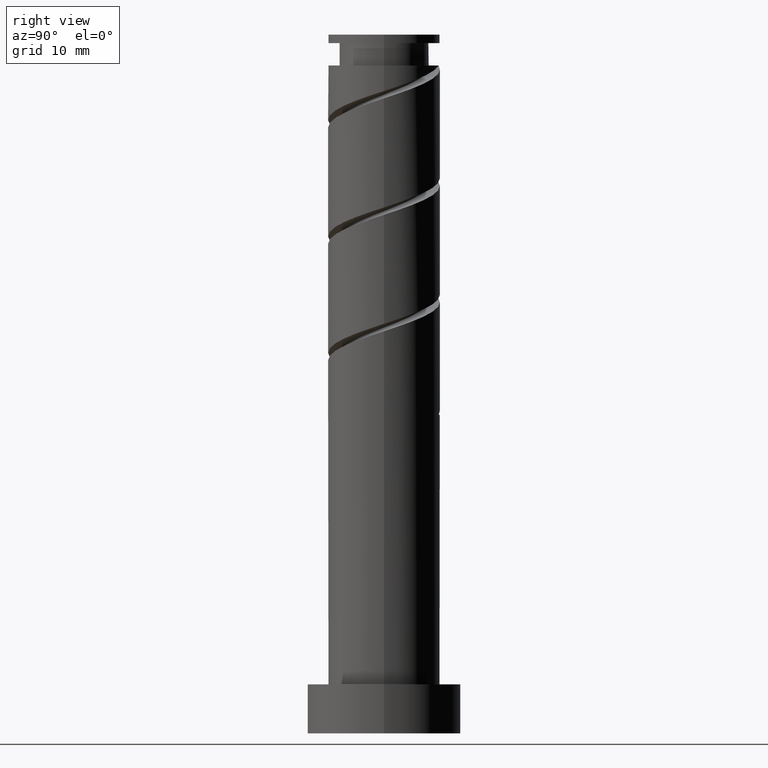
[diagram: clean part render]
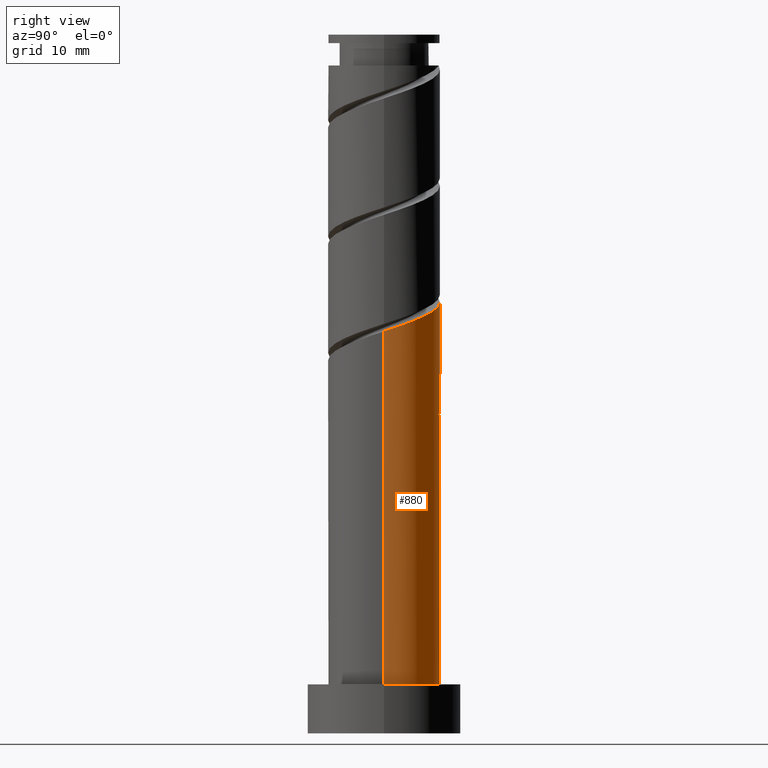
[diagram: same view with one face highlighted and labeled with its STEP entity id]
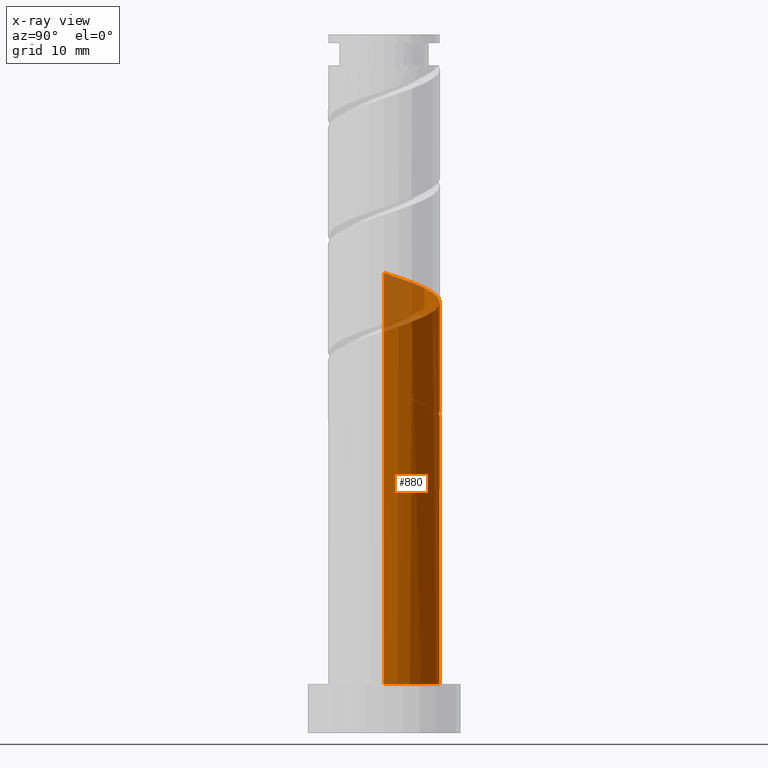
[diagram: x-ray of the same camera — body ghosted, the highlighted face saturated]
A machine part, right view. The second image highlights one B-rep face of the part: STEP entity #880.
The next image is the same camera in x-ray: the body ghosted, the highlighted face saturated — about 8% of this face is hidden behind the body in this view.
In plain terms, the highlighted cylindrical surface (partial cylindrical patch) has radius 8 mm, axis along (-0, -0, -1).
Its self-contained STEP definition (entity closure, byte-faithful):
#19 = CARTESIAN_POINT ( 'NONE',  ( 8.000000000000000000, 9.797174393178823685E-16, 100.0000000000000000 ) ) ;
#27 = VERTEX_POINT ( 'NONE', #651 ) ;
#35 = ORIENTED_EDGE ( 'NONE', *, *, #374, .T. ) ;
#40 = DIRECTION ( 'NONE',  ( -0.000000000000000000, -0.000000000000000000, -1.000000000000000000 ) ) ;
#44 = CARTESIAN_POINT ( 'NONE',  ( 7.997337192023810104, 0.2063924346310197222, 57.62576103051945609 ) ) ;
#52 = CARTESIAN_POINT ( 'NONE',  ( 6.927952113231022224, 4.241852965488886795, 59.01464991940834182 ) ) ;
#139 = FACE_OUTER_BOUND ( 'NONE', #1135, .T. ) ;
#161 = CARTESIAN_POINT ( 'NONE',  ( 7.960944637184254269, 1.616538755408089889, 58.08872399348243221 ) ) ;
#165 = CARTESIAN_POINT ( 'NONE',  ( -7.137528483847244587, 3.878856043515702456, 47.90353880829723465 ) ) ;
#174 = CARTESIAN_POINT ( 'NONE',  ( -8.000000000000000000, 0.000000000000000000, 7.000000000000000000 ) ) ;
#187 = CARTESIAN_POINT ( 'NONE',  ( -1.591979899370592033, 7.840000000000012292, 45.58872399348242510 ) ) ;
#215 = EDGE_CURVE ( 'NONE', #387, #1353, #589, .T. ) ;
#244 = VERTEX_POINT ( 'NONE', #317 ) ;
#246 = DIRECTION ( 'NONE',  ( 0.000000000000000000, 0.000000000000000000, 1.000000000000000000 ) ) ;
#252 = LINE ( 'NONE', #331, #1467 ) ;
#271 = CARTESIAN_POINT ( 'NONE',  ( -8.000000000000010658, 1.304434974563657867, 48.79461625946137815 ) ) ;
#317 = CARTESIAN_POINT ( 'NONE',  ( -8.000000000000012434, 5.153943458678326322E-15, 65.89120243849366432 ) ) ;
#331 = CARTESIAN_POINT ( 'NONE',  ( -8.000000000000000000, 0.000000000000000000, 100.0000000000000000 ) ) ;
#348 = CARTESIAN_POINT ( 'NONE',  ( -5.993649215984703460, 5.298695035169128431, 48.36650177126021077 ) ) ;
#350 = CIRCLE ( 'NONE', #399, 8.000000000000000000 ) ;
#374 = EDGE_CURVE ( 'NONE', #765, #1447, #951, .T. ) ;
#387 = VERTEX_POINT ( 'NONE', #1159 ) ;
#389 = CARTESIAN_POINT ( 'NONE',  ( 0.000000000000000000, 0.000000000000000000, 45.58872399348241800 ) ) ;
#399 = AXIS2_PLACEMENT_3D ( 'NONE', #420, #246, #1043 ) ;
#403 = CARTESIAN_POINT ( 'NONE',  ( -0.2095763706162258044, 8.120709009004595913, 61.79242769718612749 ) ) ;
#420 = CARTESIAN_POINT ( 'NONE',  ( 0.000000000000000000, 0.000000000000000000, 7.000000000000000000 ) ) ;
#428 = CARTESIAN_POINT ( 'NONE',  ( -5.059346318738396242, 6.355537104849367402, 47.90353880829722755 ) ) ;
#440 = CARTESIAN_POINT ( 'NONE',  ( 1.591979899370594476, 7.839999999999999858, 45.58872399348241800 ) ) ;
#447 = CARTESIAN_POINT ( 'NONE',  ( -6.927952113231005349, 4.241852965488886795, 48.82946473422315137 ) ) ;
#454 = CARTESIAN_POINT ( 'NONE',  ( -3.819927504472515167, 7.029093388238227824, 47.44057584533426564 ) ) ;
#461 = CARTESIAN_POINT ( 'NONE',  ( -7.997337192023797670, 0.2063924346310208602, 50.21835362311205131 ) ) ;
#476 = ORIENTED_EDGE ( 'NONE', *, *, #858, .F. ) ;
#483 = EDGE_CURVE ( 'NONE', #27, #808, #1361, .T. ) ;
#500 = CARTESIAN_POINT ( 'NONE',  ( 8.000000000000012434, -5.348150023787944344E-15, 57.55786910516032151 ) ) ;
#510 = CARTESIAN_POINT ( 'NONE',  ( 1.185466159795213414, 7.911679340315846076, 61.32946473422317268 ) ) ;
#517 = CARTESIAN_POINT ( 'NONE',  ( 8.000000000000000000, 9.797174393178823685E-16, 7.000000000000000000 ) ) ;
#524 = DIRECTION ( 'NONE',  ( 0.000000000000000000, -0.000000000000000000, -1.000000000000000000 ) ) ;
#582 = VERTEX_POINT ( 'NONE', #174 ) ;
#589 =( BOUNDED_CURVE ( )  B_SPLINE_CURVE ( 2, ( #665, #1010, #461, #925, #1001, #447, #348, #428, #454, #674, #1020, #894, #440 ),
 .UNSPECIFIED., .F., .T. ) 
 B_SPLINE_CURVE_WITH_KNOTS ( ( 3, 2, 2, 2, 2, 2, 3 ),
 ( 0.9295248053855290626, 0.9305555555555555802, 0.9444444444444444198, 0.9583333333333333703, 0.9722222222222222099, 0.9861111111111111605, 1.000000000000000000 ),
 .UNSPECIFIED. ) 
 CURVE ( )  GEOMETRIC_REPRESENTATION_ITEM ( )  RATIONAL_B_SPLINE_CURVE ( ( 0.9071930855141200345, 0.9080659294509676460, 0.9090909090909077284, 0.8952797754656424134, 0.9090909090909077284, 0.8952797754656424134, 0.9090909090909077284, 0.8952797754656424134, 0.9090909090909077284, 0.8952797754656424134, 0.9090909090909077284, 0.8952797754656424134, 0.9090909090909077284 ) ) 
 REPRESENTATION_ITEM ( '' )  );
#622 = CARTESIAN_POINT ( 'NONE',  ( -4.177409687551286943, 6.822700953607219176, 63.18131658607500611 ) ) ;
#624 = CARTESIAN_POINT ( 'NONE',  ( -8.000000000000000000, 0.000000000000000000, 100.0000000000000000 ) ) ;
#634 = CARTESIAN_POINT ( 'NONE',  ( -7.585629115355304819, 2.541304964830878088, 48.36650177126021788 ) ) ;
#637 = CARTESIAN_POINT ( 'NONE',  ( -8.000000000000012434, 5.153943458678326322E-15, 65.89120243849366432 ) ) ;
#646 = CARTESIAN_POINT ( 'NONE',  ( 7.444448375207636914, 2.929195860448488009, 58.55168695644539412 ) ) ;
#651 = CARTESIAN_POINT ( 'NONE',  ( -1.591979899370592033, 7.840000000000012292, 45.58872399348241800 ) ) ;
#660 = EDGE_CURVE ( 'NONE', #1447, #582, #350, .T. ) ;
#665 = CARTESIAN_POINT ( 'NONE',  ( -8.000000000000000000, -3.077427108660123028E-15, 50.28624554847117167 ) ) ;
#674 = CARTESIAN_POINT ( 'NONE',  ( -2.580508690206634981, 7.702649671627087358, 46.97761288237129662 ) ) ;
#705 = ORIENTED_EDGE ( 'NONE', *, *, #483, .F. ) ;
#723 = DIRECTION ( 'NONE',  ( -0.000000000000000000, -0.000000000000000000, -1.000000000000000000 ) ) ;
#737 = CARTESIAN_POINT ( 'NONE',  ( -5.380435946977612183, 6.086110916219009681, 63.64427954903798224 ) ) ;
#740 = CARTESIAN_POINT ( 'NONE',  ( -8.000000000000012434, 5.153943458678326322E-15, 49.22453577182698581 ) ) ;
#760 = CARTESIAN_POINT ( 'NONE',  ( 5.059346318738406900, 6.355537104849376284, 59.94057584533427985 ) ) ;
#765 = VERTEX_POINT ( 'NONE', #890 ) ;
#792 = DIRECTION ( 'NONE',  ( -0.000000000000000000, -0.000000000000000000, -1.000000000000000000 ) ) ;
#808 = VERTEX_POINT ( 'NONE', #1364 ) ;
#832 = CARTESIAN_POINT ( 'NONE',  ( 1.591979899370594476, 7.839999999999999858, 45.58872399348241800 ) ) ;
#833 = DIRECTION ( 'NONE',  ( -1.000000000000000000, 0.000000000000000000, 0.000000000000000000 ) ) ;
#840 = CARTESIAN_POINT ( 'NONE',  ( 0.000000000000000000, 0.000000000000000000, 100.0000000000000000 ) ) ;
#846 = CARTESIAN_POINT ( 'NONE',  ( -7.585629115355304819, 2.541304964830878088, 65.03316843792684665 ) ) ;
#852 = AXIS2_PLACEMENT_3D ( 'NONE', #840, #723, #833 ) ;
#854 = CARTESIAN_POINT ( 'NONE',  ( -1.591979899370591811, 7.840000000000012292, 62.25539066014908229 ) ) ;
#858 = EDGE_CURVE ( 'NONE', #808, #582, #1422, .T. ) ;
#880 = ADVANCED_FACE ( 'NONE', ( #139 ), #957, .T. ) ;
#890 = CARTESIAN_POINT ( 'NONE',  ( 8.000000000000012434, -5.348150023787944344E-15, 57.55786910516032151 ) ) ;
#894 = CARTESIAN_POINT ( 'NONE',  ( 0.2095763706162271367, 8.120709009004581702, 46.05168695644537991 ) ) ;
#925 = CARTESIAN_POINT ( 'NONE',  ( -7.960944637184240058, 1.616538755408090555, 49.75539066014908940 ) ) ;
#927 = ORIENTED_EDGE ( 'NONE', *, *, #1457, .F. ) ;
#951 = LINE ( 'NONE', #19, #1083 ) ;
#957 = CYLINDRICAL_SURFACE ( 'NONE', #852, 8.000000000000000000 ) ;
#964 = CIRCLE ( 'NONE', #1008, 8.000000000000000000 ) ;
#974 = ORIENTED_EDGE ( 'NONE', *, *, #660, .T. ) ;
#976 = CARTESIAN_POINT ( 'NONE',  ( -7.137528483847244587, 3.878856043515702456, 64.57020547496391316 ) ) ;
#982 = CARTESIAN_POINT ( 'NONE',  ( -6.258982215412427941, 4.982483479867354959, 64.10724251200093704 ) ) ;
#1001 = CARTESIAN_POINT ( 'NONE',  ( -7.444448375207623592, 2.929195860448489341, 49.29242769718612038 ) ) ;
#1008 = AXIS2_PLACEMENT_3D ( 'NONE', #389, #524, #1193 ) ;
#1010 = CARTESIAN_POINT ( 'NONE',  ( -8.000000000000000000, 0.1032133946561677174, 50.25222817453882129 ) ) ;
#1020 = CARTESIAN_POINT ( 'NONE',  ( -1.185466159795203644, 7.911679340315834530, 46.51464991940835603 ) ) ;
#1043 = DIRECTION ( 'NONE',  ( 1.000000000000000000, 0.000000000000000000, 0.000000000000000000 ) ) ;
#1070 = ORIENTED_EDGE ( 'NONE', *, *, #215, .F. ) ;
#1072 = CARTESIAN_POINT ( 'NONE',  ( 8.000000000000012434, 0.1032133946561632210, 57.59188647909268610 ) ) ;
#1075 = CARTESIAN_POINT ( 'NONE',  ( -6.258982215412427941, 4.982483479867354959, 47.44057584533427985 ) ) ;
#1083 = VECTOR ( 'NONE', #40, 1000.000000000000000 ) ;
#1101 = CARTESIAN_POINT ( 'NONE',  ( 3.819927504472525381, 7.029093388238235818, 60.40353880829723465 ) ) ;
#1135 = EDGE_LOOP ( 'NONE', ( #927, #35, #974, #476, #705, #1431, #1070, #1293 ) ) ;
#1159 = CARTESIAN_POINT ( 'NONE',  ( -8.000000000000000000, -3.077427108660123028E-15, 50.28624554847117167 ) ) ;
#1184 = CARTESIAN_POINT ( 'NONE',  ( 5.993649215984713230, 5.298695035169134648, 59.47761288237131083 ) ) ;
#1185 = DIRECTION ( 'NONE',  ( -0.000000000000000000, -0.000000000000000000, -1.000000000000000000 ) ) ;
#1187 = VECTOR ( 'NONE', #1185, 1000.000000000000000 ) ;
#1193 = DIRECTION ( 'NONE',  ( -1.000000000000000000, 0.000000000000000000, 0.000000000000000000 ) ) ;
#1200 = CARTESIAN_POINT ( 'NONE',  ( -2.974383428124961259, 7.559290990995426895, 62.71835362311205131 ) ) ;
#1204 = CARTESIAN_POINT ( 'NONE',  ( -5.380435946977612183, 6.086110916219009681, 46.97761288237131083 ) ) ;
#1293 = ORIENTED_EDGE ( 'NONE', *, *, #1402, .F. ) ;
#1322 = CARTESIAN_POINT ( 'NONE',  ( -2.974383428124961259, 7.559290990995426895, 46.05168695644538701 ) ) ;
#1327 = CARTESIAN_POINT ( 'NONE',  ( -8.000000000000010658, 1.304434974563655869, 65.46128292612803534 ) ) ;
#1353 = VERTEX_POINT ( 'NONE', #832 ) ;
#1361 =( BOUNDED_CURVE ( )  B_SPLINE_CURVE ( 2, ( #187, #1322, #1445, #1204, #1075, #165, #634, #271, #740 ),
 .UNSPECIFIED., .F., .T. ) 
 B_SPLINE_CURVE_WITH_KNOTS ( ( 3, 2, 2, 2, 3 ),
 ( 0.000000000000000000, 0.01388888888888883955, 0.02777777777777779358, 0.04166666666666662966, 0.05452480538552905570 ),
 .UNSPECIFIED. ) 
 CURVE ( )  GEOMETRIC_REPRESENTATION_ITEM ( )  RATIONAL_B_SPLINE_CURVE ( ( 0.9090909090909138346, 0.8952797754656482976, 0.9090909090909138346, 0.8952797754656482976, 0.9090909090909138346, 0.8952797754656482976, 0.9090909090909138346, 0.8963047551055883799, 0.9071930855141261407 ) ) 
 REPRESENTATION_ITEM ( '' )  );
#1364 = CARTESIAN_POINT ( 'NONE',  ( -8.000000000000012434, 5.153943458678326322E-15, 49.22453577182698581 ) ) ;
#1402 = EDGE_CURVE ( 'NONE', #244, #387, #252, .T. ) ;
#1422 = LINE ( 'NONE', #624, #1187 ) ;
#1431 = ORIENTED_EDGE ( 'NONE', *, *, #1486, .T. ) ;
#1433 = CARTESIAN_POINT ( 'NONE',  ( 2.580508690206644751, 7.702649671627096239, 60.86650177126019656 ) ) ;
#1445 = CARTESIAN_POINT ( 'NONE',  ( -4.177409687551286943, 6.822700953607219176, 46.51464991940834182 ) ) ;
#1447 = VERTEX_POINT ( 'NONE', #517 ) ;
#1457 = EDGE_CURVE ( 'NONE', #765, #244, #1464, .T. ) ;
#1464 =( BOUNDED_CURVE ( )  B_SPLINE_CURVE ( 2, ( #500, #1072, #44, #161, #646, #52, #1184, #760, #1101, #1433, #510, #403, #854, #1200, #622, #737, #982, #976, #846, #1327, #637 ),
 .UNSPECIFIED., .F., .T. ) 
 B_SPLINE_CURVE_WITH_KNOTS ( ( 3, 2, 2, 2, 2, 2, 2, 2, 2, 2, 3 ),
 ( 0.1795248053855290349, 0.1805555555555555802, 0.1944444444444444198, 0.2083333333333333703, 0.2222222222222222099, 0.2361111111111111605, 0.2500000000000000000, 0.2638888888888888395, 0.2777777777777777901, 0.2916666666666666297, 0.3045248053855290626 ),
 .UNSPECIFIED. ) 
 CURVE ( )  GEOMETRIC_REPRESENTATION_ITEM ( )  RATIONAL_B_SPLINE_CURVE ( ( 0.9071930855141261407, 0.9080659294509737522, 0.9090909090909138346, 0.8952797754656482976, 0.9090909090909138346, 0.8952797754656482976, 0.9090909090909138346, 0.8952797754656482976, 0.9090909090909138346, 0.8952797754656482976, 0.9090909090909138346, 0.8952797754656482976, 0.9090909090909138346, 0.8952797754656482976, 0.9090909090909138346, 0.8952797754656482976, 0.9090909090909138346, 0.8952797754656482976, 0.9090909090909138346, 0.8963047551055883799, 0.9071930855141261407 ) ) 
 REPRESENTATION_ITEM ( '' )  );
#1467 = VECTOR ( 'NONE', #792, 1000.000000000000000 ) ;
#1486 = EDGE_CURVE ( 'NONE', #27, #1353, #964, .T. ) ;